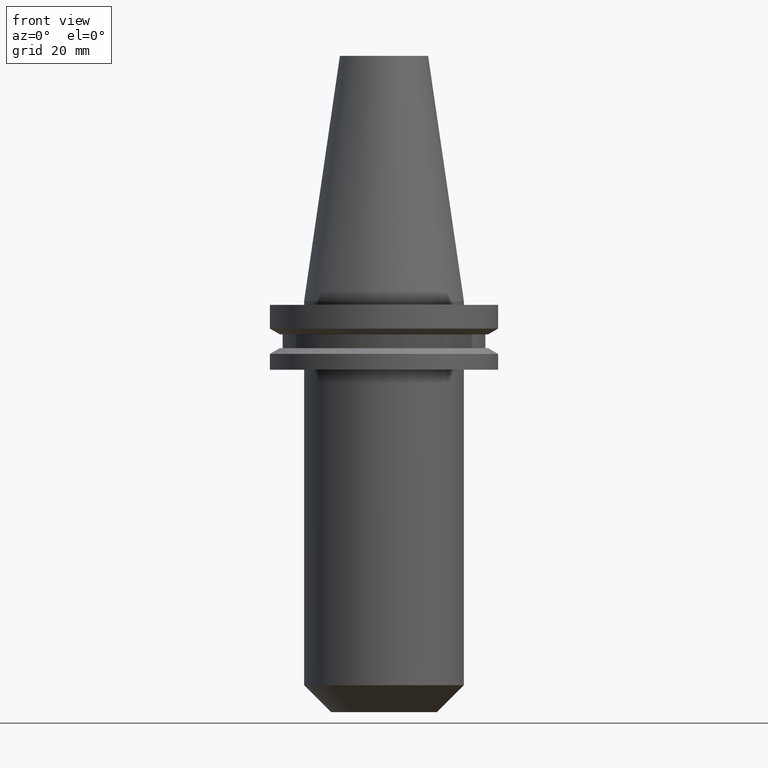
[diagram: clean part render]
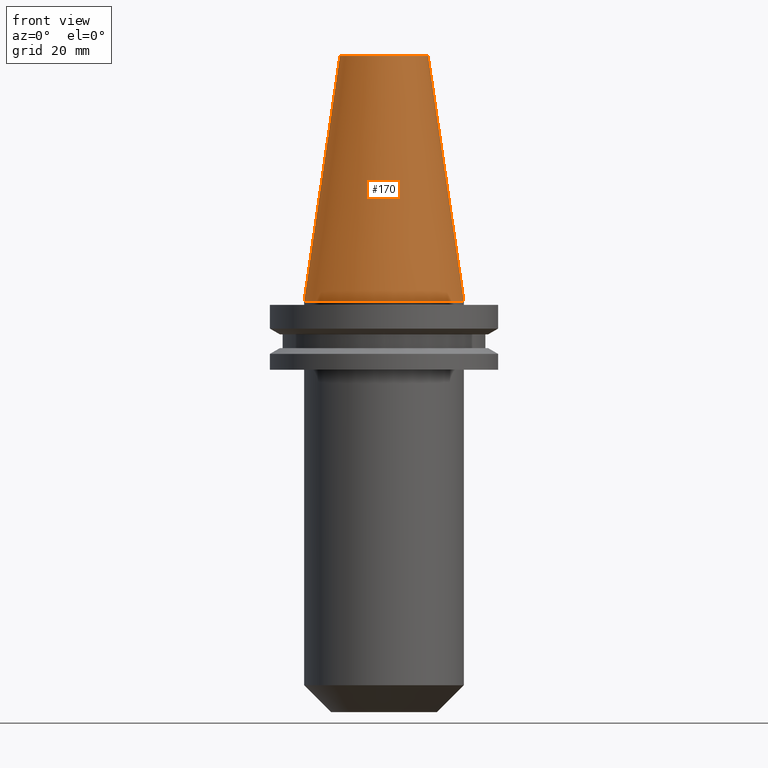
[diagram: same view with one face highlighted and labeled with its STEP entity id]
A machine part, front view. The second image highlights one B-rep face of the part: STEP entity #170.
In plain terms, the highlighted conical surface has half-angle 8.297 deg.
Its self-contained STEP definition (entity closure, byte-faithful):
#4 = CIRCLE ( 'NONE', #27, 22.22500000000000142 ) ;
#23 = VECTOR ( 'NONE', #459, 999.9999999999998863 ) ;
#27 = AXIS2_PLACEMENT_3D ( 'NONE', #139, #378, #729 ) ;
#33 = DIRECTION ( 'NONE',  ( 0.000000000000000000, 0.000000000000000000, -1.000000000000000000 ) ) ;
#52 = CARTESIAN_POINT ( 'NONE',  ( 0.000000000000000000, 0.000000000000000000, 0.000000000000000000 ) ) ;
#55 = CIRCLE ( 'NONE', #461, 12.27178102086201150 ) ;
#62 = CARTESIAN_POINT ( 'NONE',  ( -22.22500000000000142, 0.000000000000000000, 0.000000000000000000 ) ) ;
#63 = VERTEX_POINT ( 'NONE', #379 ) ;
#89 = CARTESIAN_POINT ( 'NONE',  ( 22.22500000000000142, 2.721777511104992849E-15, 0.000000000000000000 ) ) ;
#101 = CARTESIAN_POINT ( 'NONE',  ( 22.22500000000000142, 2.721777511104992849E-15, 0.000000000000000000 ) ) ;
#124 = ORIENTED_EDGE ( 'NONE', *, *, #397, .F. ) ;
#126 = EDGE_CURVE ( 'NONE', #637, #181, #4, .T. ) ;
#139 = CARTESIAN_POINT ( 'NONE',  ( 0.000000000000000000, 0.000000000000000000, 0.000000000000000000 ) ) ;
#146 = CARTESIAN_POINT ( 'NONE',  ( 0.000000000000000000, 0.000000000000000000, 68.25000000000000000 ) ) ;
#159 = EDGE_CURVE ( 'NONE', #63, #637, #344, .T. ) ;
#161 = CONICAL_SURFACE ( 'NONE', #607, 22.22500000000000142, 0.1448138465474119174 ) ;
#170 = ADVANCED_FACE ( 'NONE', ( #585 ), #161, .T. ) ;
#181 = VERTEX_POINT ( 'NONE', #101 ) ;
#307 = EDGE_LOOP ( 'NONE', ( #460, #124, #663, #512 ) ) ;
#344 = LINE ( 'NONE', #525, #676 ) ;
#378 = DIRECTION ( 'NONE',  ( -0.000000000000000000, -0.000000000000000000, 1.000000000000000000 ) ) ;
#379 = CARTESIAN_POINT ( 'NONE',  ( -12.27178102086201150, 0.000000000000000000, 68.25000000000000000 ) ) ;
#397 = EDGE_CURVE ( 'NONE', #63, #634, #55, .T. ) ;
#409 = DIRECTION ( 'NONE',  ( -1.000000000000000000, 0.000000000000000000, 0.000000000000000000 ) ) ;
#437 = EDGE_CURVE ( 'NONE', #634, #181, #643, .T. ) ;
#459 = DIRECTION ( 'NONE',  ( 0.1443082272672999711, 1.767266086135276757E-17, -0.9895327864921755756 ) ) ;
#460 = ORIENTED_EDGE ( 'NONE', *, *, #437, .F. ) ;
#461 = AXIS2_PLACEMENT_3D ( 'NONE', #146, #680, #631 ) ;
#512 = ORIENTED_EDGE ( 'NONE', *, *, #126, .T. ) ;
#525 = CARTESIAN_POINT ( 'NONE',  ( -22.22500000000000142, 0.000000000000000000, 0.000000000000000000 ) ) ;
#585 = FACE_OUTER_BOUND ( 'NONE', #307, .T. ) ;
#607 = AXIS2_PLACEMENT_3D ( 'NONE', #52, #33, #409 ) ;
#631 = DIRECTION ( 'NONE',  ( 1.000000000000000000, 0.000000000000000000, 0.000000000000000000 ) ) ;
#634 = VERTEX_POINT ( 'NONE', #668 ) ;
#637 = VERTEX_POINT ( 'NONE', #62 ) ;
#643 = LINE ( 'NONE', #89, #23 ) ;
#663 = ORIENTED_EDGE ( 'NONE', *, *, #159, .T. ) ;
#668 = CARTESIAN_POINT ( 'NONE',  ( 12.27178102086201150, 2.112318622904291439E-15, 68.25000000000000000 ) ) ;
#676 = VECTOR ( 'NONE', #699, 999.9999999999998863 ) ;
#680 = DIRECTION ( 'NONE',  ( -0.000000000000000000, -0.000000000000000000, 1.000000000000000000 ) ) ;
#699 = DIRECTION ( 'NONE',  ( -0.1443082272672999711, 0.000000000000000000, -0.9895327864921755756 ) ) ;
#729 = DIRECTION ( 'NONE',  ( 1.000000000000000000, 0.000000000000000000, 0.000000000000000000 ) ) ;